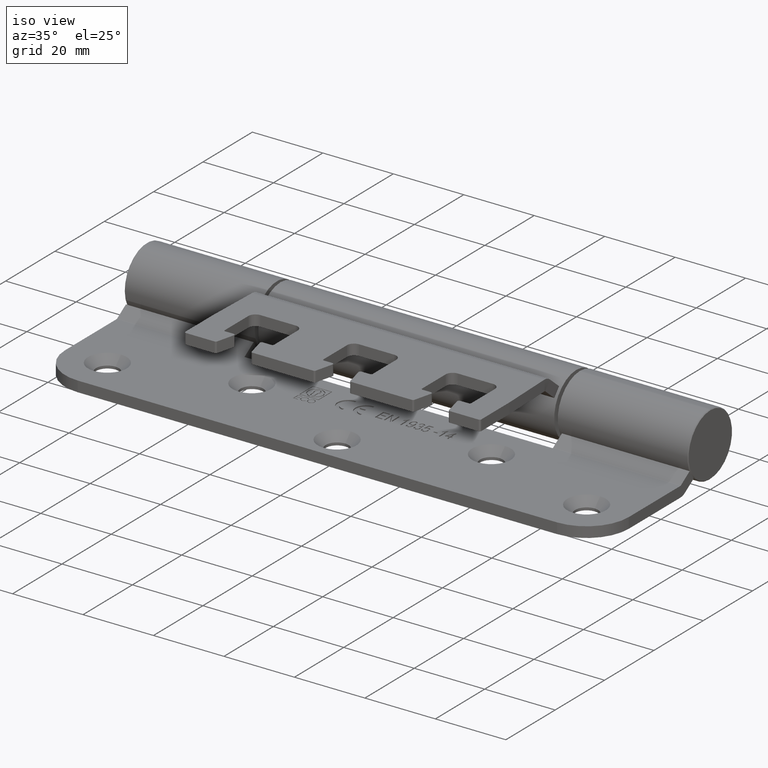
[diagram: clean part render]
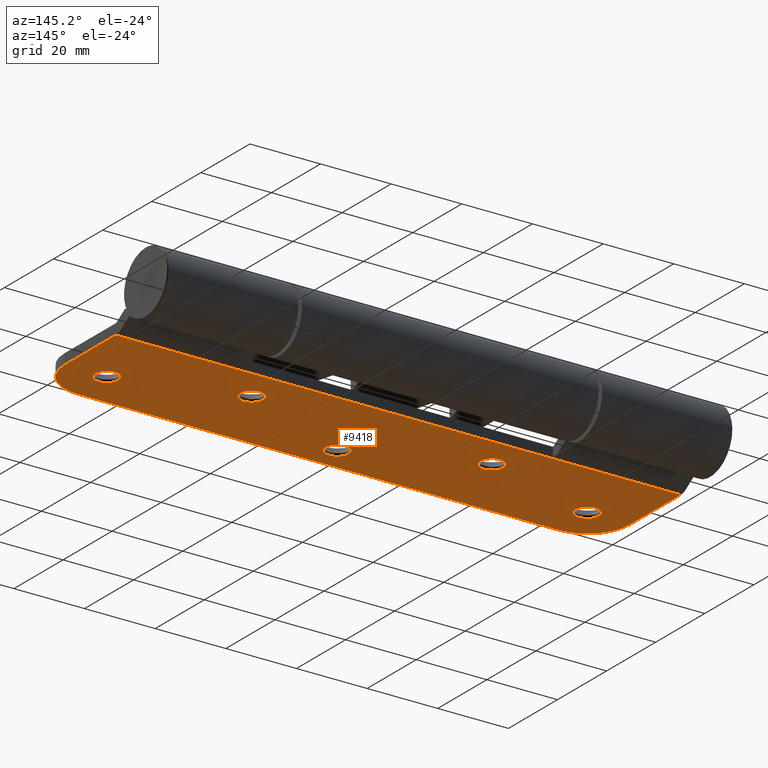
[diagram: tour spotlight — one face highlighted and labeled with its STEP entity id]
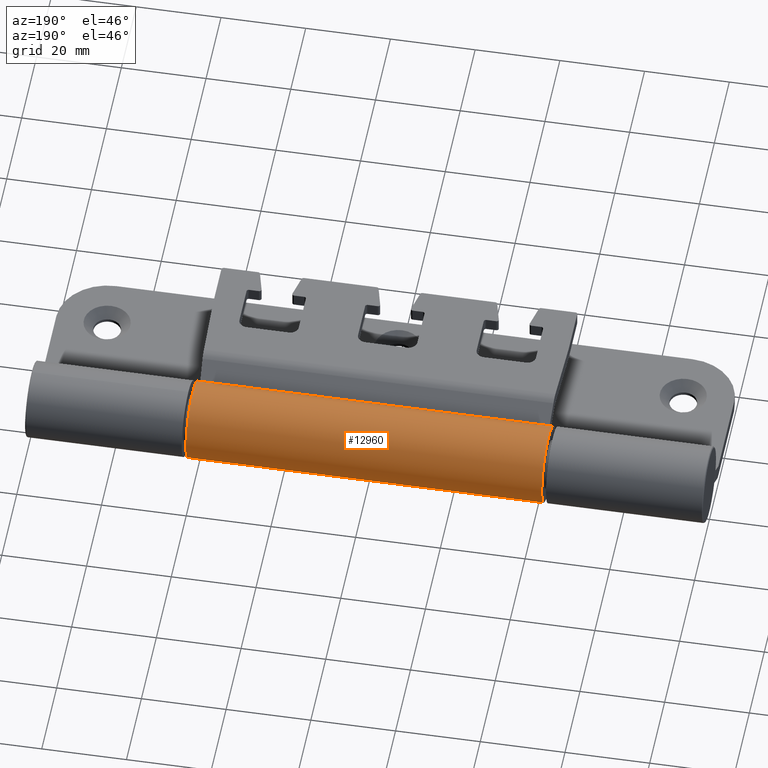
[diagram: tour spotlight — one face highlighted and labeled with its STEP entity id]
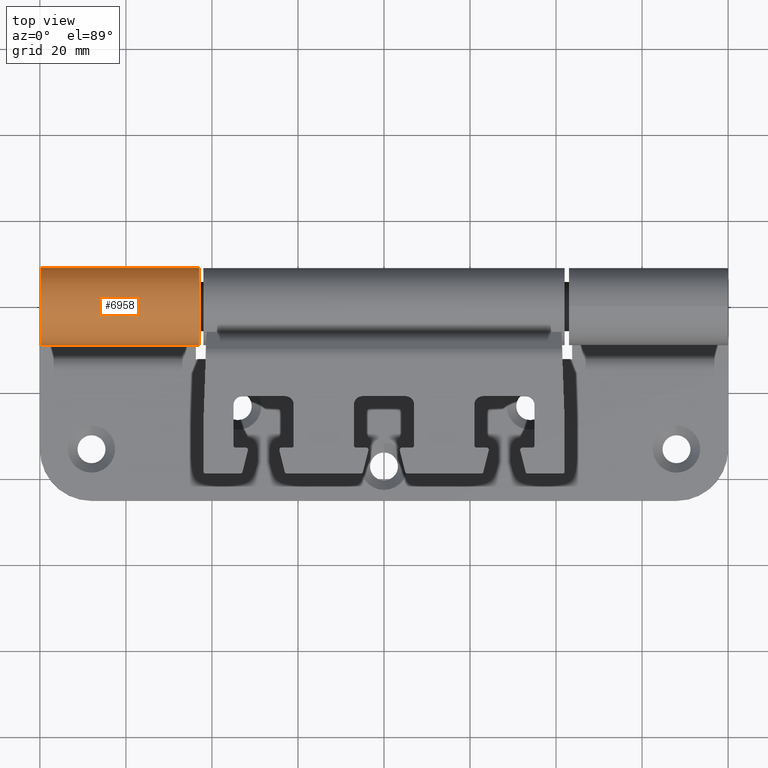
[diagram: tour spotlight — one face highlighted and labeled with its STEP entity id]
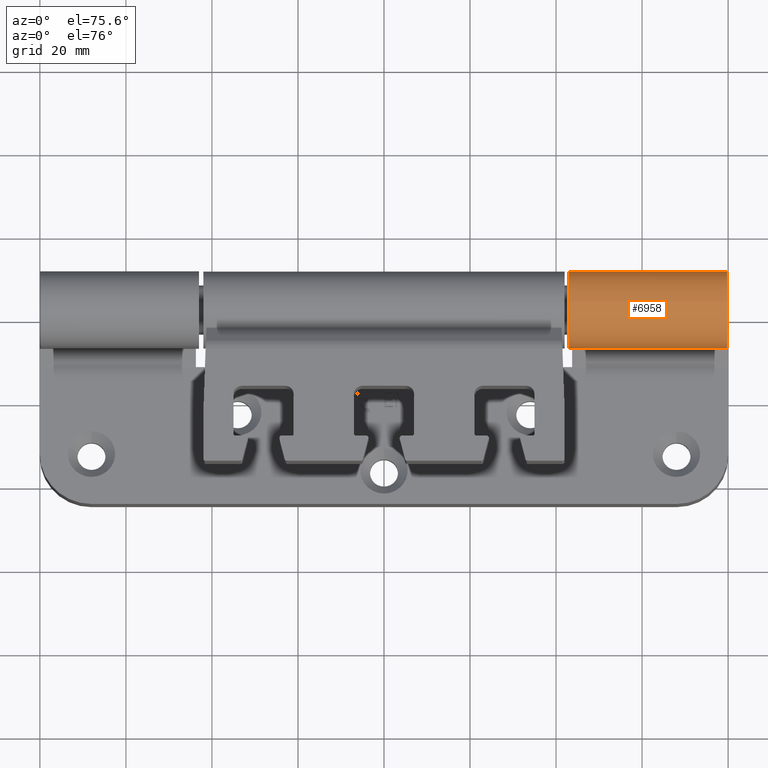
[diagram: tour spotlight — one face highlighted and labeled with its STEP entity id]
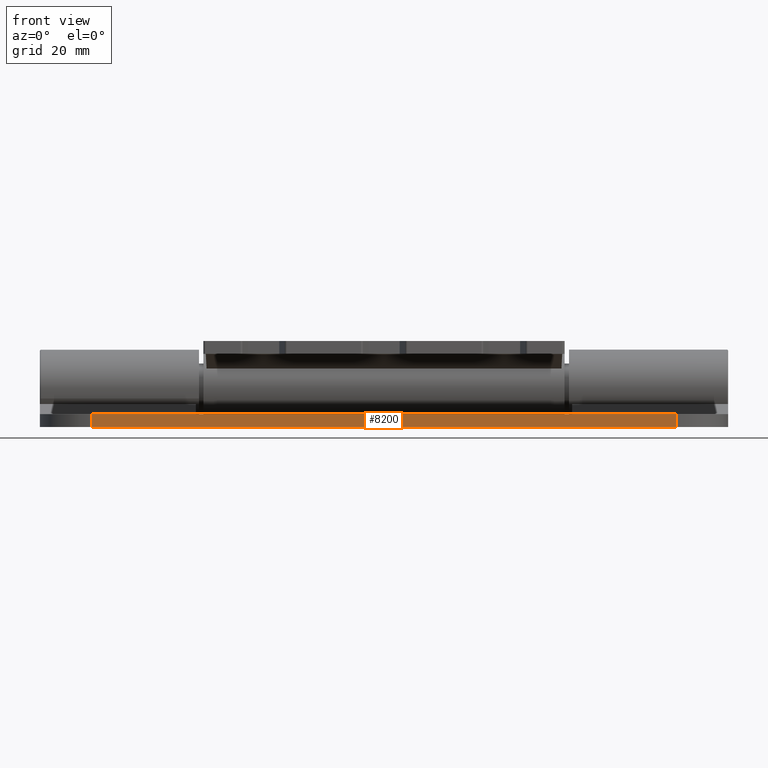
[diagram: tour spotlight — one face highlighted and labeled with its STEP entity id]
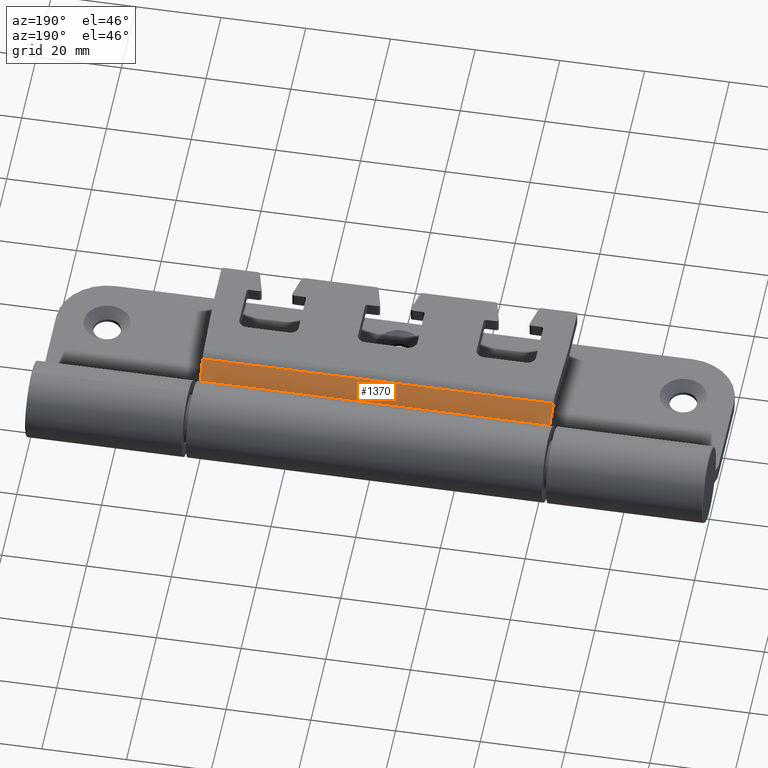
[diagram: tour spotlight — one face highlighted and labeled with its STEP entity id]
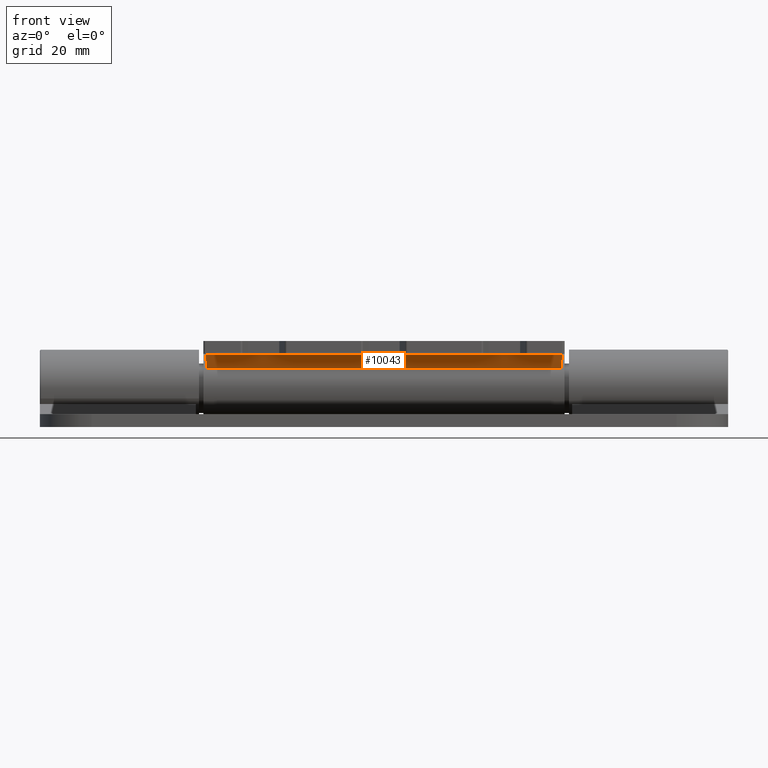
[diagram: tour spotlight — one face highlighted and labeled with its STEP entity id]
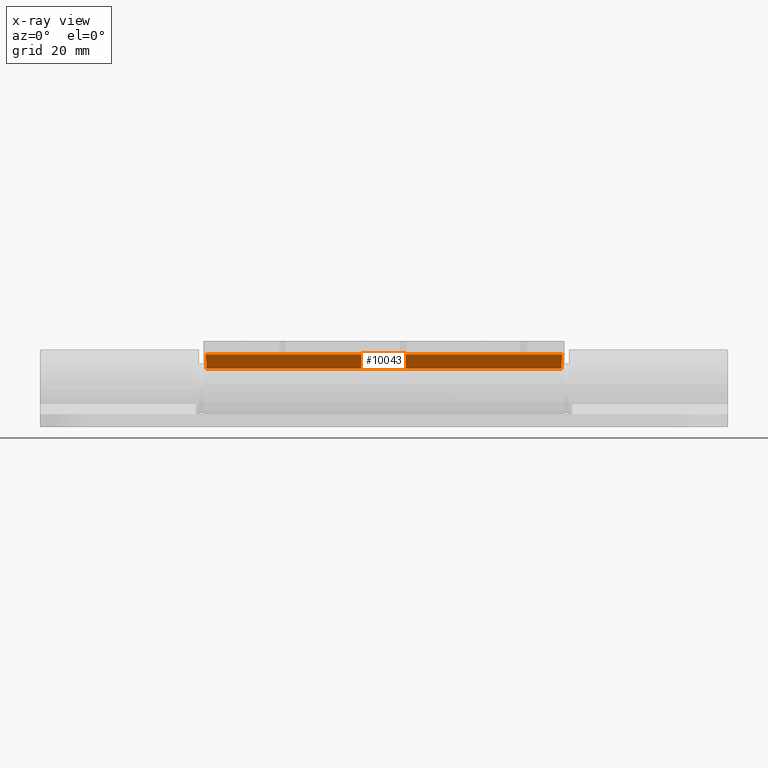
[diagram: x-ray of the same camera — body ghosted, this tour face saturated]
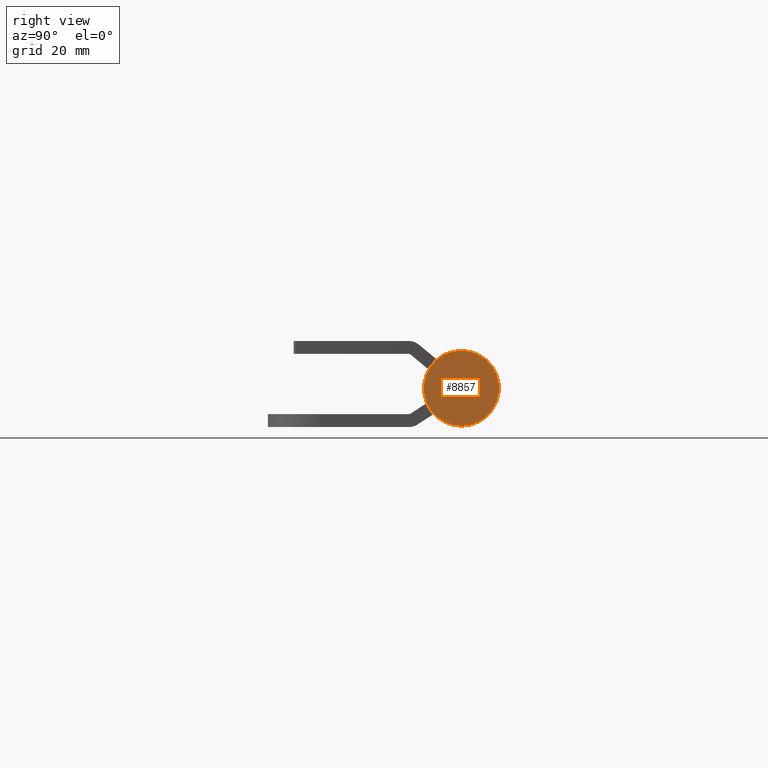
[diagram: tour spotlight — one face highlighted and labeled with its STEP entity id]
A machine part: a face-by-face anatomy tour. The part has 396 B-rep faces; the first image is the clean iso view, then the 8 largest visible faces are spotlighted one at a time (largest first), each with its STEP entity span.

Face 1 — auxiliary view, entity #9418. In plain terms, the highlighted planar face has unit normal (-0, -0, 1).
Definition (entity closure, byte-faithful):
#123 = DIRECTION ( 'NONE',  ( 0.0000000000000000000, 0.0000000000000000000, 1.000000000000000000 ) ) ;
#139 = DIRECTION ( 'NONE',  ( 1.000000000000000000, 5.238529448733262900E-032, -4.930380657631306300E-032 ) ) ;
#312 = ORIENTED_EDGE ( 'NONE', *, *, #7232, .T. ) ;
#529 = CIRCLE ( 'NONE', #3979, 12.00000000000004600 ) ;
#629 = LINE ( 'NONE', #685, #13552 ) ;
#685 = CARTESIAN_POINT ( 'NONE',  ( 9.000000000000021300, 80.00000000000000000, -12.14803240288597400 ) ) ;
#693 = ORIENTED_EDGE ( 'NONE', *, *, #5215, .T. ) ;
#732 = CARTESIAN_POINT ( 'NONE',  ( 9.000000000000021300, 43.75000000000000000, -12.14803240288599500 ) ) ;
#967 = VECTOR ( 'NONE', #1256, 1000.000000000000000 ) ;
#1256 = DIRECTION ( 'NONE',  ( -4.930380657631306300E-032, 1.531918324218318500E-031, -1.000000000000000000 ) ) ;
#1330 = DIRECTION ( 'NONE',  ( 0.0000000000000000000, 0.0000000000000000000, 1.000000000000000000 ) ) ;
#1634 = PLANE ( 'NONE',  #9353 ) ;
#1649 = VECTOR ( 'NONE', #6148, 1000.000000000000000 ) ;
#1735 = CARTESIAN_POINT ( 'NONE',  ( 9.000000000000021300, 80.00000000000000000, -45.00000000000009200 ) ) ;
#1949 = EDGE_CURVE ( 'NONE', #9311, #3909, #12918, .T. ) ;
#2033 = CIRCLE ( 'NONE', #8111, 3.250000000000013300 ) ;
#2118 = EDGE_CURVE ( 'NONE', #7625, #4847, #529, .T. ) ;
#2224 = DIRECTION ( 'NONE',  ( 1.000000000000000000, 5.238529448733262900E-032, -4.930380657631306300E-032 ) ) ;
#2247 = EDGE_CURVE ( 'NONE', #9505, #9505, #12407, .T. ) ;
#2302 = ORIENTED_EDGE ( 'NONE', *, *, #11276, .T. ) ;
#2490 = CARTESIAN_POINT ( 'NONE',  ( 9.000000000000021300, -80.00000000000000000, -33.00000000000007100 ) ) ;
#2644 = CARTESIAN_POINT ( 'NONE',  ( 9.000000000000021300, -68.00000000000000000, -33.00000000000007100 ) ) ;
#2645 = EDGE_CURVE ( 'NONE', #6427, #6427, #2033, .T. ) ;
#2685 = CARTESIAN_POINT ( 'NONE',  ( 9.000000000000010700, 34.00000000000000000, -19.75000000000007100 ) ) ;
#2779 = VERTEX_POINT ( 'NONE', #2685 ) ;
#2921 = DIRECTION ( 'NONE',  ( 0.0000000000000000000, 0.0000000000000000000, 1.000000000000000000 ) ) ;
#3007 = ORIENTED_EDGE ( 'NONE', *, *, #6091, .T. ) ;
#3053 = FACE_BOUND ( 'NONE', #12497, .T. ) ;
#3315 = VERTEX_POINT ( 'NONE', #10391 ) ;
#3781 = EDGE_LOOP ( 'NONE', ( #3858 ) ) ;
#3854 = DIRECTION ( 'NONE',  ( -1.000000000000000000, -5.238529448733264000E-032, 4.930380657631306300E-032 ) ) ;
#3858 = ORIENTED_EDGE ( 'NONE', *, *, #2645, .T. ) ;
#3874 = CARTESIAN_POINT ( 'NONE',  ( 9.000000000000021300, 6.259272319258516500E-030, -37.00000000000011400 ) ) ;
#3889 = LINE ( 'NONE', #5644, #9196 ) ;
#3909 = VERTEX_POINT ( 'NONE', #9826 ) ;
#3944 = DIRECTION ( 'NONE',  ( -4.930380657631323800E-032, -1.000000000000000000, 1.470288565997932600E-031 ) ) ;
#3979 = AXIS2_PLACEMENT_3D ( 'NONE', #8860, #139, #1330 ) ;
#4056 = CARTESIAN_POINT ( 'NONE',  ( 9.000000000000021300, 80.00000000000000000, -12.14803240288597400 ) ) ;
#4078 = DIRECTION ( 'NONE',  ( -1.000000000000000000, -5.238529448733262900E-032, 4.930380657631306300E-032 ) ) ;
#4642 = EDGE_CURVE ( 'NONE', #7625, #3909, #6802, .T. ) ;
#4847 = VERTEX_POINT ( 'NONE', #9692 ) ;
#4866 = DIRECTION ( 'NONE',  ( 0.0000000000000000000, -1.531918324218318500E-031, 1.000000000000000000 ) ) ;
#4901 = AXIS2_PLACEMENT_3D ( 'NONE', #14129, #4078, #2921 ) ;
#4973 = EDGE_CURVE ( 'NONE', #5316, #4847, #11793, .T. ) ;
#5215 = EDGE_CURVE ( 'NONE', #2779, #2779, #7084, .T. ) ;
#5316 = VERTEX_POINT ( 'NONE', #4056 ) ;
#5423 = CARTESIAN_POINT ( 'NONE',  ( 9.000000000000010700, 34.00000000000000000, -23.00000000000008200 ) ) ;
#5425 = ORIENTED_EDGE ( 'NONE', *, *, #4642, .F. ) ;
#5642 = ORIENTED_EDGE ( 'NONE', *, *, #4973, .F. ) ;
#5644 = CARTESIAN_POINT ( 'NONE',  ( 9.000000000000021300, 80.00000000000000000, -12.14803240288597400 ) ) ;
#5654 = AXIS2_PLACEMENT_3D ( 'NONE', #11002, #2224, #11055 ) ;
#5822 = ORIENTED_EDGE ( 'NONE', *, *, #10954, .T. ) ;
#6091 = EDGE_CURVE ( 'NONE', #3315, #3315, #6127, .T. ) ;
#6127 = CIRCLE ( 'NONE', #8462, 3.250000000000009800 ) ;
#6148 = DIRECTION ( 'NONE',  ( -4.930380657631323800E-032, -1.000000000000000000, 1.189524669241243800E-016 ) ) ;
#6298 = LINE ( 'NONE', #732, #1649 ) ;
#6427 = VERTEX_POINT ( 'NONE', #11274 ) ;
#6685 = FACE_BOUND ( 'NONE', #11803, .T. ) ;
#6719 = ORIENTED_EDGE ( 'NONE', *, *, #2247, .T. ) ;
#6733 = EDGE_CURVE ( 'NONE', #11412, #11412, #12363, .T. ) ;
#6738 = CARTESIAN_POINT ( 'NONE',  ( 9.000000000000021300, 68.00000000000000000, -45.00000000000009200 ) ) ;
#6798 = VERTEX_POINT ( 'NONE', #13765 ) ;
#6802 = LINE ( 'NONE', #10092, #13880 ) ;
#6927 = DIRECTION ( 'NONE',  ( -4.930380657631323800E-032, -1.000000000000000000, 1.470288565997932600E-031 ) ) ;
#6946 = DIRECTION ( 'NONE',  ( -1.000000000000000000, -5.238529448733262900E-032, 4.930380657631306300E-032 ) ) ;
#7084 = CIRCLE ( 'NONE', #8277, 3.250000000000013300 ) ;
#7232 = EDGE_CURVE ( 'NONE', #12702, #9028, #3889, .T. ) ;
#7283 = DIRECTION ( 'NONE',  ( -4.930380657631306300E-032, 1.531918324218318500E-031, -1.000000000000000000 ) ) ;
#7506 = FACE_BOUND ( 'NONE', #3781, .T. ) ;
#7612 = DIRECTION ( 'NONE',  ( -1.000000000000000000, -5.238529448733262900E-032, 4.930380657631306300E-032 ) ) ;
#7625 = VERTEX_POINT ( 'NONE', #6738 ) ;
#7794 = VECTOR ( 'NONE', #7283, 1000.000000000000000 ) ;
#7902 = DIRECTION ( 'NONE',  ( 0.0000000000000000000, 0.0000000000000000000, 1.000000000000000000 ) ) ;
#7904 = CARTESIAN_POINT ( 'NONE',  ( 9.000000000000021300, -80.00000000000000000, -12.14803240288598100 ) ) ;
#7993 = CARTESIAN_POINT ( 'NONE',  ( 9.000000000000021300, -80.00000000000000000, -45.00000000000007100 ) ) ;
#8111 = AXIS2_PLACEMENT_3D ( 'NONE', #2644, #8400, #123 ) ;
#8277 = AXIS2_PLACEMENT_3D ( 'NONE', #5423, #7612, #11944 ) ;
#8335 = LINE ( 'NONE', #7993, #967 ) ;
#8337 = EDGE_LOOP ( 'NONE', ( #2302, #9106, #5425, #12573, #5642, #5822, #9008, #312 ) ) ;
#8400 = DIRECTION ( 'NONE',  ( -1.000000000000000000, -5.238529448733262900E-032, 4.930380657631306300E-032 ) ) ;
#8462 = AXIS2_PLACEMENT_3D ( 'NONE', #3874, #13668, #4866 ) ;
#8860 = CARTESIAN_POINT ( 'NONE',  ( 9.000000000000021300, 68.00000000000000000, -33.00000000000009900 ) ) ;
#9008 = ORIENTED_EDGE ( 'NONE', *, *, #10907, .T. ) ;
#9028 = VERTEX_POINT ( 'NONE', #7904 ) ;
#9106 = ORIENTED_EDGE ( 'NONE', *, *, #1949, .T. ) ;
#9119 = CARTESIAN_POINT ( 'NONE',  ( 9.000000000000017800, -34.00000000000000000, -23.00000000000006800 ) ) ;
#9196 = VECTOR ( 'NONE', #12301, 1000.000000000000000 ) ;
#9311 = VERTEX_POINT ( 'NONE', #2490 ) ;
#9353 = AXIS2_PLACEMENT_3D ( 'NONE', #12713, #3854, #10480 ) ;
#9418 = ADVANCED_FACE ( 'NONE', ( #3053, #6685, #9772, #12035, #7506, #12214 ), #1634, .F. ) ;
#9505 = VERTEX_POINT ( 'NONE', #12572 ) ;
#9508 = ORIENTED_EDGE ( 'NONE', *, *, #6733, .T. ) ;
#9692 = CARTESIAN_POINT ( 'NONE',  ( 9.000000000000021300, 80.00000000000000000, -33.00000000000009900 ) ) ;
#9772 = FACE_BOUND ( 'NONE', #12784, .T. ) ;
#9826 = CARTESIAN_POINT ( 'NONE',  ( 9.000000000000021300, -68.00000000000001400, -45.00000000000007100 ) ) ;
#10092 = CARTESIAN_POINT ( 'NONE',  ( 9.000000000000021300, 80.00000000000000000, -45.00000000000009200 ) ) ;
#10391 = CARTESIAN_POINT ( 'NONE',  ( 9.000000000000021300, 5.761398863887561700E-030, -33.75000000000010700 ) ) ;
#10480 = DIRECTION ( 'NONE',  ( 4.930380657631306300E-032, -1.531918324218318500E-031, 1.000000000000000000 ) ) ;
#10544 = CARTESIAN_POINT ( 'NONE',  ( 9.000000000000021300, -43.75000000000000000, -12.14803240288598500 ) ) ;
#10907 = EDGE_CURVE ( 'NONE', #6798, #12702, #6298, .T. ) ;
#10954 = EDGE_CURVE ( 'NONE', #5316, #6798, #629, .T. ) ;
#11002 = CARTESIAN_POINT ( 'NONE',  ( 9.000000000000021300, -68.00000000000000000, -33.00000000000007100 ) ) ;
#11055 = DIRECTION ( 'NONE',  ( 0.0000000000000000000, 0.0000000000000000000, 1.000000000000000000 ) ) ;
#11274 = CARTESIAN_POINT ( 'NONE',  ( 9.000000000000021300, -68.00000000000000000, -29.75000000000005700 ) ) ;
#11276 = EDGE_CURVE ( 'NONE', #9028, #9311, #8335, .T. ) ;
#11412 = VERTEX_POINT ( 'NONE', #13506 ) ;
#11547 = AXIS2_PLACEMENT_3D ( 'NONE', #9119, #6946, #7902 ) ;
#11793 = LINE ( 'NONE', #1735, #7794 ) ;
#11803 = EDGE_LOOP ( 'NONE', ( #693 ) ) ;
#11944 = DIRECTION ( 'NONE',  ( 0.0000000000000000000, 0.0000000000000000000, 1.000000000000000000 ) ) ;
#12035 = FACE_BOUND ( 'NONE', #13474, .T. ) ;
#12214 = FACE_OUTER_BOUND ( 'NONE', #8337, .T. ) ;
#12301 = DIRECTION ( 'NONE',  ( -4.930380657631323800E-032, -1.000000000000000000, 1.470288565997932600E-031 ) ) ;
#12363 = CIRCLE ( 'NONE', #11547, 3.250000000000009800 ) ;
#12407 = CIRCLE ( 'NONE', #4901, 3.250000000000013300 ) ;
#12497 = EDGE_LOOP ( 'NONE', ( #6719 ) ) ;
#12572 = CARTESIAN_POINT ( 'NONE',  ( 9.000000000000021300, 68.00000000000000000, -29.75000000000008500 ) ) ;
#12573 = ORIENTED_EDGE ( 'NONE', *, *, #2118, .T. ) ;
#12702 = VERTEX_POINT ( 'NONE', #10544 ) ;
#12713 = CARTESIAN_POINT ( 'NONE',  ( 9.000000000000021300, 80.00000000000000000, -45.00000000000009200 ) ) ;
#12784 = EDGE_LOOP ( 'NONE', ( #3007 ) ) ;
#12918 = CIRCLE ( 'NONE', #5654, 12.00000000000004600 ) ;
#13474 = EDGE_LOOP ( 'NONE', ( #9508 ) ) ;
#13506 = CARTESIAN_POINT ( 'NONE',  ( 9.000000000000017800, -34.00000000000000000, -19.75000000000006000 ) ) ;
#13552 = VECTOR ( 'NONE', #3944, 1000.000000000000000 ) ;
#13668 = DIRECTION ( 'NONE',  ( -1.000000000000000000, -5.238529448733262900E-032, 4.930380657631306300E-032 ) ) ;
#13765 = CARTESIAN_POINT ( 'NONE',  ( 9.000000000000021300, 43.75000000000000000, -12.14803240288599500 ) ) ;
#13880 = VECTOR ( 'NONE', #6927, 1000.000000000000000 ) ;
#14129 = CARTESIAN_POINT ( 'NONE',  ( 9.000000000000021300, 68.00000000000000000, -33.00000000000009900 ) ) ;

Face 2 — auxiliary view, entity #12960. In plain terms, the highlighted cylindrical surface (bore or boss wall) has radius 9 mm, axis along (1, -0, -0).
Definition (entity closure, byte-faithful):
#87 = FACE_OUTER_BOUND ( 'NONE', #6168, .T. ) ;
#643 = ORIENTED_EDGE ( 'NONE', *, *, #13695, .T. ) ;
#751 = CARTESIAN_POINT ( 'NONE',  ( 42.00000000000002100, -1.301042606982605300E-015, 0.0000000000000000000 ) ) ;
#758 = AXIS2_PLACEMENT_3D ( 'NONE', #751, #11092, #11849 ) ;
#902 = CIRCLE ( 'NONE', #4870, 9.000000000000000000 ) ;
#1872 = EDGE_LOOP ( 'NONE', ( #3524 ) ) ;
#2433 = VERTEX_POINT ( 'NONE', #8342 ) ;
#3228 = CARTESIAN_POINT ( 'NONE',  ( 55.00000000000005000, -4.770489558936219500E-015, -6.938893903907228400E-015 ) ) ;
#3524 = ORIENTED_EDGE ( 'NONE', *, *, #6546, .F. ) ;
#4408 = DIRECTION ( 'NONE',  ( 1.000000000000000000, -5.090030809847245500E-017, -2.775557561562908600E-017 ) ) ;
#4870 = AXIS2_PLACEMENT_3D ( 'NONE', #14213, #4408, #12131 ) ;
#6168 = EDGE_LOOP ( 'NONE', ( #643 ) ) ;
#6546 = EDGE_CURVE ( 'NONE', #13673, #13673, #11166, .T. ) ;
#8342 = CARTESIAN_POINT ( 'NONE',  ( -42.00000000000003600, 1.820739388538664900E-015, -9.000000000000000000 ) ) ;
#9769 = DIRECTION ( 'NONE',  ( 0.0000000000000000000, 5.774408683956215600E-017, -1.000000000000000000 ) ) ;
#10026 = AXIS2_PLACEMENT_3D ( 'NONE', #3228, #14290, #9769 ) ;
#10732 = FACE_OUTER_BOUND ( 'NONE', #1872, .T. ) ;
#11092 = DIRECTION ( 'NONE',  ( 1.000000000000000000, -5.090030809847245500E-017, -2.775557561562908600E-017 ) ) ;
#11166 = CIRCLE ( 'NONE', #758, 9.000000000000000000 ) ;
#11849 = DIRECTION ( 'NONE',  ( 0.0000000000000000000, 5.774408683956216800E-017, -1.000000000000000000 ) ) ;
#12131 = DIRECTION ( 'NONE',  ( 0.0000000000000000000, 5.774408683956215600E-017, -1.000000000000000000 ) ) ;
#12960 = ADVANCED_FACE ( 'NONE', ( #87, #10732 ), #14029, .T. ) ;
#13602 = CARTESIAN_POINT ( 'NONE',  ( 42.00000000000002100, -7.813458254265458000E-016, -9.000000000000000000 ) ) ;
#13673 = VERTEX_POINT ( 'NONE', #13602 ) ;
#13695 = EDGE_CURVE ( 'NONE', #2433, #2433, #902, .T. ) ;
#14029 = CYLINDRICAL_SURFACE ( 'NONE', #10026, 9.000000000000000000 ) ;
#14213 = CARTESIAN_POINT ( 'NONE',  ( -42.00000000000003600, 1.301042606982605300E-015, 0.0000000000000000000 ) ) ;
#14290 = DIRECTION ( 'NONE',  ( 1.000000000000000000, -5.090030809847245500E-017, -2.775557561562908600E-017 ) ) ;

Face 3 — top view, entity #6958. In plain terms, the highlighted cylindrical surface (bore or boss wall) has radius 9 mm, axis along (1, -0, -0).
Definition (entity closure, byte-faithful):
#1802 = CARTESIAN_POINT ( 'NONE',  ( 36.80000000000004700, -7.806255641895633500E-015, 3.466673899897024500E-030 ) ) ;
#3716 = ORIENTED_EDGE ( 'NONE', *, *, #9426, .T. ) ;
#3758 = CIRCLE ( 'NONE', #7872, 9.000000000000007100 ) ;
#5275 = CIRCLE ( 'NONE', #10132, 9.000000000000008900 ) ;
#5498 = DIRECTION ( 'NONE',  ( -1.000000000000000000, 6.434363912748212100E-017, 8.415141050721278900E-017 ) ) ;
#5635 = EDGE_CURVE ( 'NONE', #11237, #11237, #5275, .T. ) ;
#5673 = DIRECTION ( 'NONE',  ( -8.415141050721372500E-017, -5.551115123125777200E-017, 1.000000000000000000 ) ) ;
#6527 = EDGE_LOOP ( 'NONE', ( #8222 ) ) ;
#6847 = FACE_OUTER_BOUND ( 'NONE', #6527, .T. ) ;
#6958 = ADVANCED_FACE ( 'NONE', ( #6847, #8370 ), #7171, .T. ) ;
#7171 = CYLINDRICAL_SURFACE ( 'NONE', #7553, 9.000000000000007100 ) ;
#7553 = AXIS2_PLACEMENT_3D ( 'NONE', #9824, #5498, #8625 ) ;
#7803 = DIRECTION ( 'NONE',  ( -1.000000000000000000, 6.434363912748212100E-017, 8.415141050721278900E-017 ) ) ;
#7872 = AXIS2_PLACEMENT_3D ( 'NONE', #1802, #13007, #11835 ) ;
#8222 = ORIENTED_EDGE ( 'NONE', *, *, #5635, .F. ) ;
#8370 = FACE_OUTER_BOUND ( 'NONE', #12919, .T. ) ;
#8625 = DIRECTION ( 'NONE',  ( 0.0000000000000000000, -5.551115123125782700E-017, 1.000000000000000000 ) ) ;
#9135 = CARTESIAN_POINT ( 'NONE',  ( 36.80000000000004700, -8.305856002976953900E-015, 9.000000000000007100 ) ) ;
#9162 = VERTEX_POINT ( 'NONE', #9135 ) ;
#9426 = EDGE_CURVE ( 'NONE', #9162, #9162, #3758, .T. ) ;
#9824 = CARTESIAN_POINT ( 'NONE',  ( 25.50000000000004300, -7.806255641895635100E-015, 8.859277744181284900E-030 ) ) ;
#10132 = AXIS2_PLACEMENT_3D ( 'NONE', #12231, #7803, #5673 ) ;
#10230 = CARTESIAN_POINT ( 'NONE',  ( -7.573626945649242300E-016, -4.996003610813204400E-016, 9.000000000000008900 ) ) ;
#11237 = VERTEX_POINT ( 'NONE', #10230 ) ;
#11835 = DIRECTION ( 'NONE',  ( 0.0000000000000000000, -5.551115123125782700E-017, 1.000000000000000000 ) ) ;
#12231 = CARTESIAN_POINT ( 'NONE',  ( 0.0000000000000000000, 0.0000000000000000000, 0.0000000000000000000 ) ) ;
#12919 = EDGE_LOOP ( 'NONE', ( #3716 ) ) ;
#13007 = DIRECTION ( 'NONE',  ( -1.000000000000000000, 6.434363912748212100E-017, 8.415141050721278900E-017 ) ) ;

Face 4 — auxiliary view, entity #6958. In plain terms, the highlighted cylindrical surface (bore or boss wall) has radius 9 mm, axis along (-1, 0, 0).
Definition (entity closure, byte-faithful):
#1802 = CARTESIAN_POINT ( 'NONE',  ( 36.80000000000004700, -7.806255641895633500E-015, 3.466673899897024500E-030 ) ) ;
#3716 = ORIENTED_EDGE ( 'NONE', *, *, #9426, .T. ) ;
#3758 = CIRCLE ( 'NONE', #7872, 9.000000000000007100 ) ;
#5275 = CIRCLE ( 'NONE', #10132, 9.000000000000008900 ) ;
#5498 = DIRECTION ( 'NONE',  ( -1.000000000000000000, 6.434363912748212100E-017, 8.415141050721278900E-017 ) ) ;
#5635 = EDGE_CURVE ( 'NONE', #11237, #11237, #5275, .T. ) ;
#5673 = DIRECTION ( 'NONE',  ( -8.415141050721372500E-017, -5.551115123125777200E-017, 1.000000000000000000 ) ) ;
#6527 = EDGE_LOOP ( 'NONE', ( #8222 ) ) ;
#6847 = FACE_OUTER_BOUND ( 'NONE', #6527, .T. ) ;
#6958 = ADVANCED_FACE ( 'NONE', ( #6847, #8370 ), #7171, .T. ) ;
#7171 = CYLINDRICAL_SURFACE ( 'NONE', #7553, 9.000000000000007100 ) ;
#7553 = AXIS2_PLACEMENT_3D ( 'NONE', #9824, #5498, #8625 ) ;
#7803 = DIRECTION ( 'NONE',  ( -1.000000000000000000, 6.434363912748212100E-017, 8.415141050721278900E-017 ) ) ;
#7872 = AXIS2_PLACEMENT_3D ( 'NONE', #1802, #13007, #11835 ) ;
#8222 = ORIENTED_EDGE ( 'NONE', *, *, #5635, .F. ) ;
#8370 = FACE_OUTER_BOUND ( 'NONE', #12919, .T. ) ;
#8625 = DIRECTION ( 'NONE',  ( 0.0000000000000000000, -5.551115123125782700E-017, 1.000000000000000000 ) ) ;
#9135 = CARTESIAN_POINT ( 'NONE',  ( 36.80000000000004700, -8.305856002976953900E-015, 9.000000000000007100 ) ) ;
#9162 = VERTEX_POINT ( 'NONE', #9135 ) ;
#9426 = EDGE_CURVE ( 'NONE', #9162, #9162, #3758, .T. ) ;
#9824 = CARTESIAN_POINT ( 'NONE',  ( 25.50000000000004300, -7.806255641895635100E-015, 8.859277744181284900E-030 ) ) ;
#10132 = AXIS2_PLACEMENT_3D ( 'NONE', #12231, #7803, #5673 ) ;
#10230 = CARTESIAN_POINT ( 'NONE',  ( -7.573626945649242300E-016, -4.996003610813204400E-016, 9.000000000000008900 ) ) ;
#11237 = VERTEX_POINT ( 'NONE', #10230 ) ;
#11835 = DIRECTION ( 'NONE',  ( 0.0000000000000000000, -5.551115123125782700E-017, 1.000000000000000000 ) ) ;
#12231 = CARTESIAN_POINT ( 'NONE',  ( 0.0000000000000000000, 0.0000000000000000000, 0.0000000000000000000 ) ) ;
#12919 = EDGE_LOOP ( 'NONE', ( #3716 ) ) ;
#13007 = DIRECTION ( 'NONE',  ( -1.000000000000000000, 6.434363912748212100E-017, 8.415141050721278900E-017 ) ) ;

Face 5 — front view, entity #8200. In plain terms, the highlighted planar face has unit normal (-0, -1, -0).
Definition (entity closure, byte-faithful):
#543 = VECTOR ( 'NONE', #8659, 1000.000000000000000 ) ;
#694 = CARTESIAN_POINT ( 'NONE',  ( 6.000000000000027500, 80.00000000000000000, -45.00000000000009200 ) ) ;
#1132 = VECTOR ( 'NONE', #7645, 1000.000000000000000 ) ;
#1289 = CARTESIAN_POINT ( 'NONE',  ( 6.000000000000027500, 80.00000000000000000, -45.00000000000009200 ) ) ;
#2012 = VERTEX_POINT ( 'NONE', #12350 ) ;
#2579 = LINE ( 'NONE', #2818, #543 ) ;
#2818 = CARTESIAN_POINT ( 'NONE',  ( 6.000000000000023100, -68.00000000000000000, -45.00000000000007100 ) ) ;
#3909 = VERTEX_POINT ( 'NONE', #9826 ) ;
#4438 = VERTEX_POINT ( 'NONE', #14036 ) ;
#4552 = VECTOR ( 'NONE', #10200, 1000.000000000000000 ) ;
#4642 = EDGE_CURVE ( 'NONE', #7625, #3909, #6802, .T. ) ;
#4923 = EDGE_CURVE ( 'NONE', #2012, #7625, #12848, .T. ) ;
#5099 = DIRECTION ( 'NONE',  ( -1.000000000000000000, -5.238529448733262900E-032, 4.930380657631306300E-032 ) ) ;
#5108 = EDGE_LOOP ( 'NONE', ( #10272, #6529, #7204, #11278 ) ) ;
#6365 = FACE_OUTER_BOUND ( 'NONE', #5108, .T. ) ;
#6529 = ORIENTED_EDGE ( 'NONE', *, *, #8295, .T. ) ;
#6738 = CARTESIAN_POINT ( 'NONE',  ( 9.000000000000021300, 68.00000000000000000, -45.00000000000009200 ) ) ;
#6802 = LINE ( 'NONE', #10092, #13880 ) ;
#6898 = CARTESIAN_POINT ( 'NONE',  ( 6.000000000000023100, 68.00000000000000000, -45.00000000000009200 ) ) ;
#6927 = DIRECTION ( 'NONE',  ( -4.930380657631323800E-032, -1.000000000000000000, 1.470288565997932600E-031 ) ) ;
#7204 = ORIENTED_EDGE ( 'NONE', *, *, #11664, .F. ) ;
#7245 = DIRECTION ( 'NONE',  ( -4.930380657631306300E-032, 1.531918324218318700E-031, -1.000000000000000000 ) ) ;
#7625 = VERTEX_POINT ( 'NONE', #6738 ) ;
#7645 = DIRECTION ( 'NONE',  ( -4.930380657631323800E-032, -1.000000000000000000, 1.470288565997932600E-031 ) ) ;
#8200 = ADVANCED_FACE ( 'NONE', ( #6365 ), #13883, .T. ) ;
#8295 = EDGE_CURVE ( 'NONE', #3909, #4438, #2579, .T. ) ;
#8659 = DIRECTION ( 'NONE',  ( -1.000000000000000000, -5.238529448733262900E-032, 4.930380657631306300E-032 ) ) ;
#9826 = CARTESIAN_POINT ( 'NONE',  ( 9.000000000000021300, -68.00000000000001400, -45.00000000000007100 ) ) ;
#10048 = LINE ( 'NONE', #1289, #1132 ) ;
#10092 = CARTESIAN_POINT ( 'NONE',  ( 9.000000000000021300, 80.00000000000000000, -45.00000000000009200 ) ) ;
#10200 = DIRECTION ( 'NONE',  ( 1.000000000000000000, 5.238529448733262900E-032, -4.930380657631306300E-032 ) ) ;
#10272 = ORIENTED_EDGE ( 'NONE', *, *, #4642, .T. ) ;
#11278 = ORIENTED_EDGE ( 'NONE', *, *, #4923, .T. ) ;
#11664 = EDGE_CURVE ( 'NONE', #2012, #4438, #10048, .T. ) ;
#12350 = CARTESIAN_POINT ( 'NONE',  ( 6.000000000000023100, 68.00000000000000000, -45.00000000000009200 ) ) ;
#12480 = AXIS2_PLACEMENT_3D ( 'NONE', #694, #7245, #5099 ) ;
#12848 = LINE ( 'NONE', #6898, #4552 ) ;
#13880 = VECTOR ( 'NONE', #6927, 1000.000000000000000 ) ;
#13883 = PLANE ( 'NONE',  #12480 ) ;
#14036 = CARTESIAN_POINT ( 'NONE',  ( 6.000000000000023100, -68.00000000000001400, -45.00000000000007100 ) ) ;

Face 6 — auxiliary view, entity #1370. In plain terms, the highlighted planar face has unit normal (-0, -0.6382, -0.7698).
Definition (entity closure, byte-faithful):
#289 = EDGE_CURVE ( 'NONE', #7342, #12427, #14025, .T. ) ;
#396 = FACE_OUTER_BOUND ( 'NONE', #8032, .T. ) ;
#823 = LINE ( 'NONE', #8399, #5466 ) ;
#1370 = ADVANCED_FACE ( 'NONE', ( #396 ), #5269, .F. ) ;
#1371 = CARTESIAN_POINT ( 'NONE',  ( -9.946500675704941200, -10.19445917349424700, -41.43031973126505100 ) ) ;
#1529 = ORIENTED_EDGE ( 'NONE', *, *, #6566, .T. ) ;
#1697 = EDGE_CURVE ( 'NONE', #1884, #12427, #10676, .T. ) ;
#1884 = VERTEX_POINT ( 'NONE', #8630 ) ;
#1958 = ORIENTED_EDGE ( 'NONE', *, *, #1697, .F. ) ;
#2807 = ORIENTED_EDGE ( 'NONE', *, *, #289, .T. ) ;
#3105 = CARTESIAN_POINT ( 'NONE',  ( -5.971263825129716100, -6.898841086059102100, -41.24999999999997900 ) ) ;
#4002 = DIRECTION ( 'NONE',  ( 0.7693765090764594900, 0.6378415260950268700, 0.03489949670250087200 ) ) ;
#4788 = DIRECTION ( 'NONE',  ( -0.6382303187608099300, 0.7698454781412145100, 3.944304526105053300E-031 ) ) ;
#5269 = PLANE ( 'NONE',  #7924 ) ;
#5466 = VECTOR ( 'NONE', #10573, 1000.000000000000100 ) ;
#5510 = EDGE_CURVE ( 'NONE', #1884, #8461, #823, .T. ) ;
#6523 = VECTOR ( 'NONE', #11016, 1000.000000000000000 ) ;
#6566 = EDGE_CURVE ( 'NONE', #8461, #7342, #12046, .T. ) ;
#7342 = VERTEX_POINT ( 'NONE', #1371 ) ;
#7924 = AXIS2_PLACEMENT_3D ( 'NONE', #10273, #4788, #12511 ) ;
#8032 = EDGE_LOOP ( 'NONE', ( #1529, #2807, #1958, #12885 ) ) ;
#8399 = CARTESIAN_POINT ( 'NONE',  ( -9.961797076824414200, -10.20714045465984800, 41.43101358751636100 ) ) ;
#8421 = VECTOR ( 'NONE', #11395, 1000.000000000000000 ) ;
#8461 = VERTEX_POINT ( 'NONE', #8801 ) ;
#8630 = CARTESIAN_POINT ( 'NONE',  ( -5.971263825129704500, -6.898841086059095000, 41.25000000000000000 ) ) ;
#8801 = CARTESIAN_POINT ( 'NONE',  ( -9.946500675704941200, -10.19445917349424700, 41.43031973126505800 ) ) ;
#10273 = CARTESIAN_POINT ( 'NONE',  ( -9.946500675704941200, -10.19445917349424800, 42.00000000000000000 ) ) ;
#10573 = DIRECTION ( 'NONE',  ( -0.7693765090764594900, -0.6378415260950268700, 0.03489949670250087200 ) ) ;
#10594 = CARTESIAN_POINT ( 'NONE',  ( -7.706325429738790000, -8.337271202779442400, -41.32870369842896700 ) ) ;
#10676 = LINE ( 'NONE', #11106, #8421 ) ;
#11016 = DIRECTION ( 'NONE',  ( 1.788702331130122600E-045, -7.562681082485599300E-046, -1.000000000000000000 ) ) ;
#11106 = CARTESIAN_POINT ( 'NONE',  ( -5.971263825129717900, -6.898841086059100300, 42.00000000000000000 ) ) ;
#11395 = DIRECTION ( 'NONE',  ( 1.788702331130122600E-045, -7.562681082485599300E-046, -1.000000000000000000 ) ) ;
#11592 = CARTESIAN_POINT ( 'NONE',  ( -9.946500675704943000, -10.19445917349424300, 42.00000000000000000 ) ) ;
#12046 = LINE ( 'NONE', #11592, #6523 ) ;
#12293 = VECTOR ( 'NONE', #4002, 1000.000000000000100 ) ;
#12427 = VERTEX_POINT ( 'NONE', #3105 ) ;
#12511 = DIRECTION ( 'NONE',  ( -0.7698454781412144000, -0.6382303187608098200, -1.788702331130122600E-045 ) ) ;
#12885 = ORIENTED_EDGE ( 'NONE', *, *, #5510, .T. ) ;
#14025 = LINE ( 'NONE', #10594, #12293 ) ;

Face 7 — front view, entity #10043. An x-ray twin of the same camera follows (body ghosted, this face saturated) — the face is partly hidden behind the body. In plain terms, the highlighted planar face has unit normal (-0, -0.6382, -0.7698).
Definition (entity closure, byte-faithful):
#455 = EDGE_CURVE ( 'NONE', #9467, #6470, #7424, .T. ) ;
#1948 = LINE ( 'NONE', #11270, #4364 ) ;
#2348 = FACE_OUTER_BOUND ( 'NONE', #6745, .T. ) ;
#2745 = VERTEX_POINT ( 'NONE', #3290 ) ;
#3016 = CARTESIAN_POINT ( 'NONE',  ( -7.885954781412143800, -4.589304651635457900, -41.25000000000000000 ) ) ;
#3087 = CARTESIAN_POINT ( 'NONE',  ( -11.86119163198737200, -7.884922739070606000, 42.00000000000000000 ) ) ;
#3290 = CARTESIAN_POINT ( 'NONE',  ( -11.86119163198737600, -7.884922739070607800, -41.43031973126505800 ) ) ;
#4194 = DIRECTION ( 'NONE',  ( -0.7698454781412144000, -0.6382303187608098200, -1.788702331130122600E-045 ) ) ;
#4201 = VECTOR ( 'NONE', #8527, 1000.000000000000100 ) ;
#4364 = VECTOR ( 'NONE', #12430, 1000.000000000000000 ) ;
#4851 = CARTESIAN_POINT ( 'NONE',  ( -11.86119163198737200, -7.884922739070606000, 42.00000000000000000 ) ) ;
#4858 = EDGE_CURVE ( 'NONE', #2745, #12045, #8683, .T. ) ;
#5243 = CARTESIAN_POINT ( 'NONE',  ( -24.42007235698150700, -18.29669844728838900, 42.00000000000000000 ) ) ;
#5324 = LINE ( 'NONE', #4851, #12235 ) ;
#6425 = VECTOR ( 'NONE', #12979, 1000.000000000000100 ) ;
#6470 = VERTEX_POINT ( 'NONE', #7167 ) ;
#6745 = EDGE_LOOP ( 'NONE', ( #12698, #8593, #12195, #10024 ) ) ;
#7167 = CARTESIAN_POINT ( 'NONE',  ( -11.86119163198737600, -7.884922739070609600, 41.43031973126505800 ) ) ;
#7424 = LINE ( 'NONE', #5243, #6425 ) ;
#8116 = EDGE_CURVE ( 'NONE', #6470, #2745, #5324, .T. ) ;
#8527 = DIRECTION ( 'NONE',  ( 0.7693765090764594900, 0.6378415260950268700, 0.03489949670250087200 ) ) ;
#8593 = ORIENTED_EDGE ( 'NONE', *, *, #8116, .F. ) ;
#8683 = LINE ( 'NONE', #12894, #4201 ) ;
#9467 = VERTEX_POINT ( 'NONE', #10720 ) ;
#9639 = PLANE ( 'NONE',  #12525 ) ;
#10024 = ORIENTED_EDGE ( 'NONE', *, *, #12324, .T. ) ;
#10043 = ADVANCED_FACE ( 'NONE', ( #2348 ), #9639, .T. ) ;
#10720 = CARTESIAN_POINT ( 'NONE',  ( -7.885954781412134900, -4.589304651635450800, 41.25000000000000000 ) ) ;
#10798 = DIRECTION ( 'NONE',  ( -0.6382303187608099300, 0.7698454781412145100, 3.944304526105053300E-031 ) ) ;
#11270 = CARTESIAN_POINT ( 'NONE',  ( -7.885954781412143800, -4.589304651635454300, 42.00000000000000000 ) ) ;
#11420 = DIRECTION ( 'NONE',  ( 1.788702331130122600E-045, -7.562681082485599300E-046, -1.000000000000000000 ) ) ;
#12045 = VERTEX_POINT ( 'NONE', #3016 ) ;
#12195 = ORIENTED_EDGE ( 'NONE', *, *, #455, .F. ) ;
#12235 = VECTOR ( 'NONE', #11420, 1000.000000000000000 ) ;
#12324 = EDGE_CURVE ( 'NONE', #9467, #12045, #1948, .T. ) ;
#12430 = DIRECTION ( 'NONE',  ( 1.788702331130122600E-045, -7.562681082485599300E-046, -1.000000000000000000 ) ) ;
#12525 = AXIS2_PLACEMENT_3D ( 'NONE', #3087, #10798, #4194 ) ;
#12698 = ORIENTED_EDGE ( 'NONE', *, *, #4858, .F. ) ;
#12894 = CARTESIAN_POINT ( 'NONE',  ( -24.42007235698151400, -18.29669844728839200, -42.00000000000000000 ) ) ;
#12979 = DIRECTION ( 'NONE',  ( -0.7693765090764594900, -0.6378415260950268700, 0.03489949670250087200 ) ) ;

Face 8 — right view, entity #8857. In plain terms, the highlighted planar face has unit normal (-1, 0, -0).
Definition (entity closure, byte-faithful):
#1502 = EDGE_LOOP ( 'NONE', ( #4993 ) ) ;
#3749 = DIRECTION ( 'NONE',  ( -1.000000000000000000, 6.434363912748212100E-017, 8.415141050721278900E-017 ) ) ;
#4138 = CIRCLE ( 'NONE', #4807, 8.800000000000009600 ) ;
#4275 = FACE_OUTER_BOUND ( 'NONE', #1502, .T. ) ;
#4807 = AXIS2_PLACEMENT_3D ( 'NONE', #11122, #3749, #9133 ) ;
#4993 = ORIENTED_EDGE ( 'NONE', *, *, #7667, .F. ) ;
#5372 = CARTESIAN_POINT ( 'NONE',  ( 37.00000000000002800, 8.799999999999988300, -3.287584375762954800E-015 ) ) ;
#5419 = DIRECTION ( 'NONE',  ( -1.000000000000000000, 6.434363912748212100E-017, -8.415141050721371300E-017 ) ) ;
#6062 = VERTEX_POINT ( 'NONE', #12433 ) ;
#7667 = EDGE_CURVE ( 'NONE', #6062, #6062, #4138, .T. ) ;
#8628 = AXIS2_PLACEMENT_3D ( 'NONE', #5372, #5419, #13158 ) ;
#8857 = ADVANCED_FACE ( 'NONE', ( #4275 ), #13060, .F. ) ;
#9133 = DIRECTION ( 'NONE',  ( 0.0000000000000000000, -5.551115123125775900E-017, 1.000000000000000000 ) ) ;
#11122 = CARTESIAN_POINT ( 'NONE',  ( 37.00000000000005700, -8.673617379884058200E-016, 4.237045877651918900E-030 ) ) ;
#12433 = CARTESIAN_POINT ( 'NONE',  ( 37.00000000000005700, -1.355859868823474600E-015, 8.800000000000009600 ) ) ;
#13060 = PLANE ( 'NONE',  #8628 ) ;
#13158 = DIRECTION ( 'NONE',  ( -8.415141050721371300E-017, -5.551115123125776500E-017, 1.000000000000000000 ) ) ;